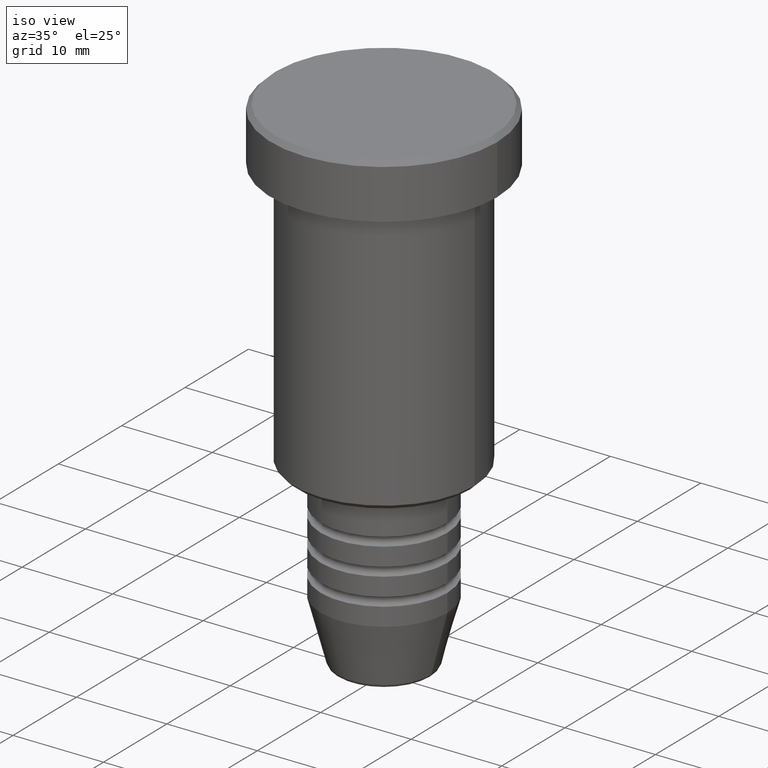
[diagram: clean part render]
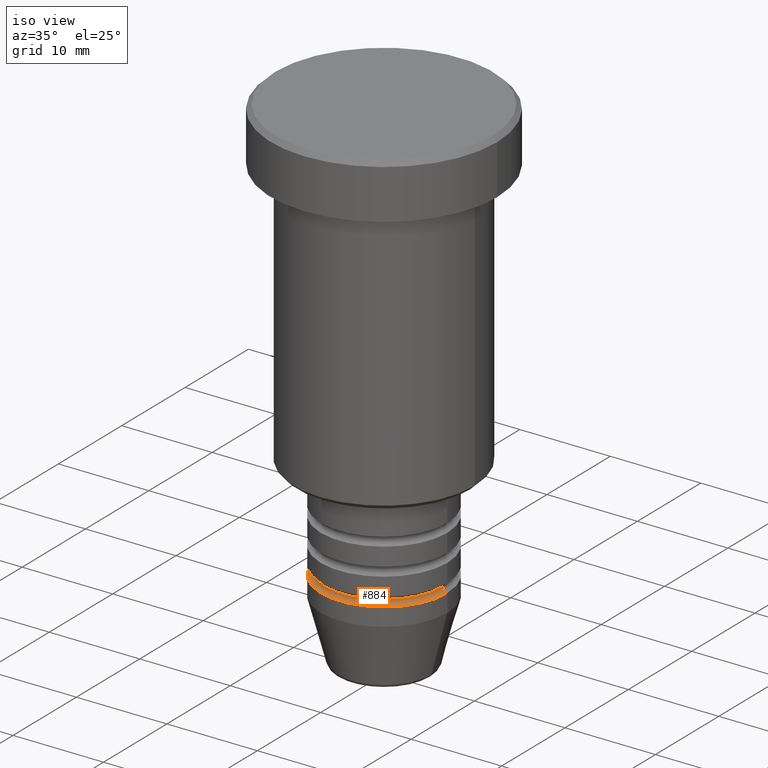
[diagram: same view with one face highlighted and labeled with its STEP entity id]
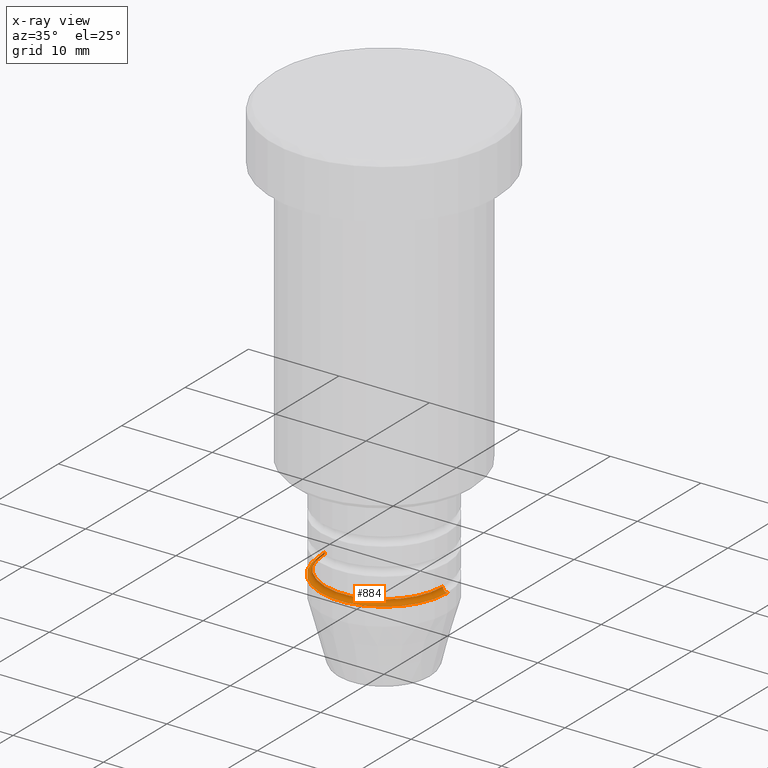
[diagram: x-ray of the same camera — body ghosted, the highlighted face saturated]
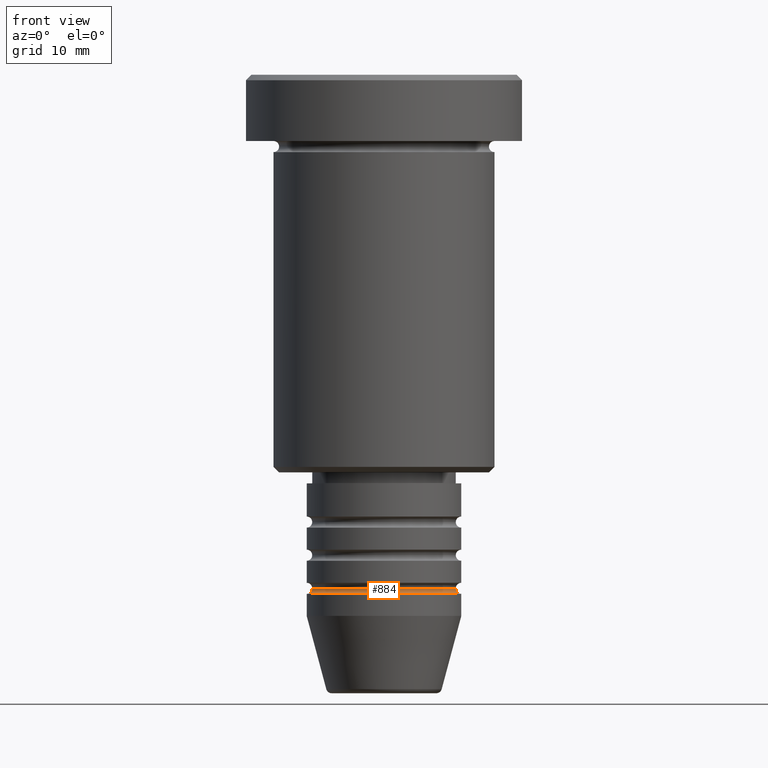
[diagram: same view with one face highlighted and labeled with its STEP entity id]
A machine part, iso view. The second image highlights one B-rep face of the part: STEP entity #884.
The next image is the same camera in x-ray: the body ghosted, the highlighted face saturated — about 1% of this face is hidden behind the body in this view.
A second angle (front view) of the same face is appended — the face is thin or edge-on in the first view.
In plain terms, the highlighted toroidal blend (fillet) surface has major radius 7 mm and minor (blend) radius 0.5 mm.
Its self-contained STEP definition (entity closure, byte-faithful):
#12 = CIRCLE ( 'NONE', #388, 6.500000000000000888 ) ;
#55 = CIRCLE ( 'NONE', #724, 0.5000000000000004441 ) ;
#62 = VERTEX_POINT ( 'NONE', #393 ) ;
#104 = TOROIDAL_SURFACE ( 'NONE', #417, 7.000000000000000888, 0.5000000000000000000 ) ;
#135 = EDGE_CURVE ( 'NONE', #1082, #378, #779, .T. ) ;
#169 = DIRECTION ( 'NONE',  ( -1.000000000000000000, 1.224646799147351482E-16, 0.000000000000000000 ) ) ;
#185 = CARTESIAN_POINT ( 'NONE',  ( -7.000000000000000000, 8.572527594031473190E-16, -46.99999999999999289 ) ) ;
#253 = AXIS2_PLACEMENT_3D ( 'NONE', #905, #628, #442 ) ;
#328 = DIRECTION ( 'NONE',  ( 1.224646799147353207E-16, 1.000000000000000000, 0.000000000000000000 ) ) ;
#329 = ORIENTED_EDGE ( 'NONE', *, *, #377, .F. ) ;
#377 = EDGE_CURVE ( 'NONE', #496, #378, #931, .T. ) ;
#378 = VERTEX_POINT ( 'NONE', #975 ) ;
#388 = AXIS2_PLACEMENT_3D ( 'NONE', #801, #1001, #1159 ) ;
#393 = CARTESIAN_POINT ( 'NONE',  ( -6.500000000000000888, 8.266365894244635319E-16, -46.49999999999998579 ) ) ;
#403 = ORIENTED_EDGE ( 'NONE', *, *, #544, .F. ) ;
#417 = AXIS2_PLACEMENT_3D ( 'NONE', #894, #519, #890 ) ;
#442 = DIRECTION ( 'NONE',  ( 1.000000000000000000, 0.000000000000000000, 0.000000000000000000 ) ) ;
#496 = VERTEX_POINT ( 'NONE', #1051 ) ;
#519 = DIRECTION ( 'NONE',  ( -0.000000000000000000, -0.000000000000000000, 1.000000000000000000 ) ) ;
#544 = EDGE_CURVE ( 'NONE', #62, #496, #12, .T. ) ;
#628 = DIRECTION ( 'NONE',  ( -0.000000000000000000, -0.000000000000000000, 1.000000000000000000 ) ) ;
#694 = CARTESIAN_POINT ( 'NONE',  ( 7.000000000000000888, 0.000000000000000000, -46.49999999999998579 ) ) ;
#724 = AXIS2_PLACEMENT_3D ( 'NONE', #818, #328, #169 ) ;
#779 = CIRCLE ( 'NONE', #253, 7.000000000000000000 ) ;
#801 = CARTESIAN_POINT ( 'NONE',  ( 0.000000000000000000, 0.000000000000000000, -46.49999999999998579 ) ) ;
#818 = CARTESIAN_POINT ( 'NONE',  ( -7.000000000000000888, 8.572527594031474176E-16, -46.49999999999998579 ) ) ;
#836 = AXIS2_PLACEMENT_3D ( 'NONE', #694, #1144, #1056 ) ;
#884 = ADVANCED_FACE ( 'NONE', ( #996 ), #104, .F. ) ;
#890 = DIRECTION ( 'NONE',  ( 1.000000000000000000, 0.000000000000000000, 0.000000000000000000 ) ) ;
#891 = EDGE_CURVE ( 'NONE', #62, #1082, #55, .T. ) ;
#894 = CARTESIAN_POINT ( 'NONE',  ( 0.000000000000000000, 0.000000000000000000, -46.49999999999998579 ) ) ;
#905 = CARTESIAN_POINT ( 'NONE',  ( 0.000000000000000000, 0.000000000000000000, -46.99999999999999289 ) ) ;
#931 = CIRCLE ( 'NONE', #836, 0.5000000000000004441 ) ;
#971 = ORIENTED_EDGE ( 'NONE', *, *, #891, .T. ) ;
#975 = CARTESIAN_POINT ( 'NONE',  ( 7.000000000000000000, 0.000000000000000000, -46.99999999999999289 ) ) ;
#996 = FACE_OUTER_BOUND ( 'NONE', #1050, .T. ) ;
#999 = ORIENTED_EDGE ( 'NONE', *, *, #135, .T. ) ;
#1001 = DIRECTION ( 'NONE',  ( -0.000000000000000000, -0.000000000000000000, 1.000000000000000000 ) ) ;
#1050 = EDGE_LOOP ( 'NONE', ( #403, #971, #999, #329 ) ) ;
#1051 = CARTESIAN_POINT ( 'NONE',  ( 6.500000000000000888, 0.000000000000000000, -46.49999999999998579 ) ) ;
#1056 = DIRECTION ( 'NONE',  ( 0.000000000000000000, 0.000000000000000000, -1.000000000000000000 ) ) ;
#1082 = VERTEX_POINT ( 'NONE', #185 ) ;
#1144 = DIRECTION ( 'NONE',  ( 0.000000000000000000, -1.000000000000000000, 0.000000000000000000 ) ) ;
#1159 = DIRECTION ( 'NONE',  ( 1.000000000000000000, 0.000000000000000000, 0.000000000000000000 ) ) ;